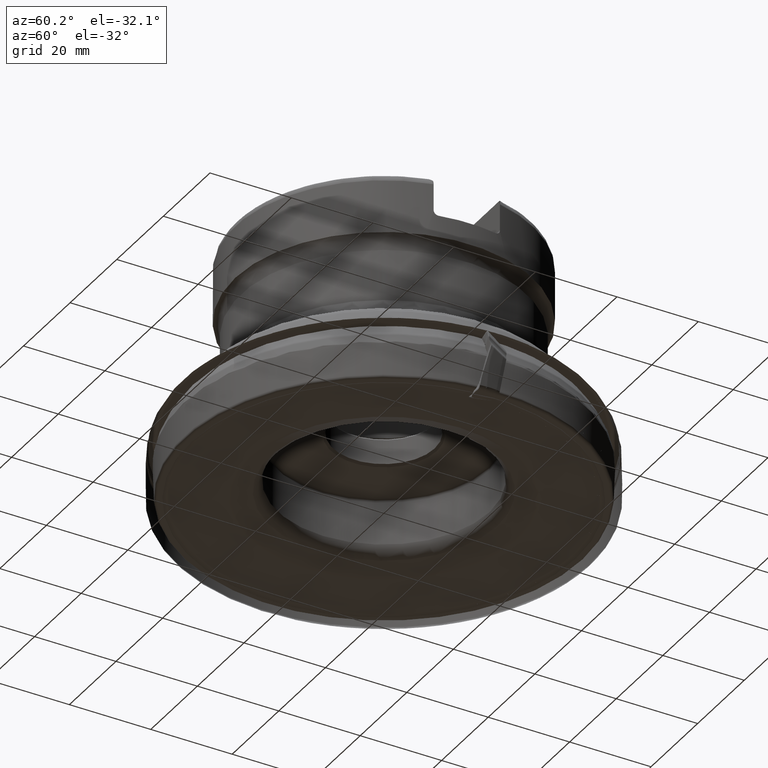
[diagram: clean part render]
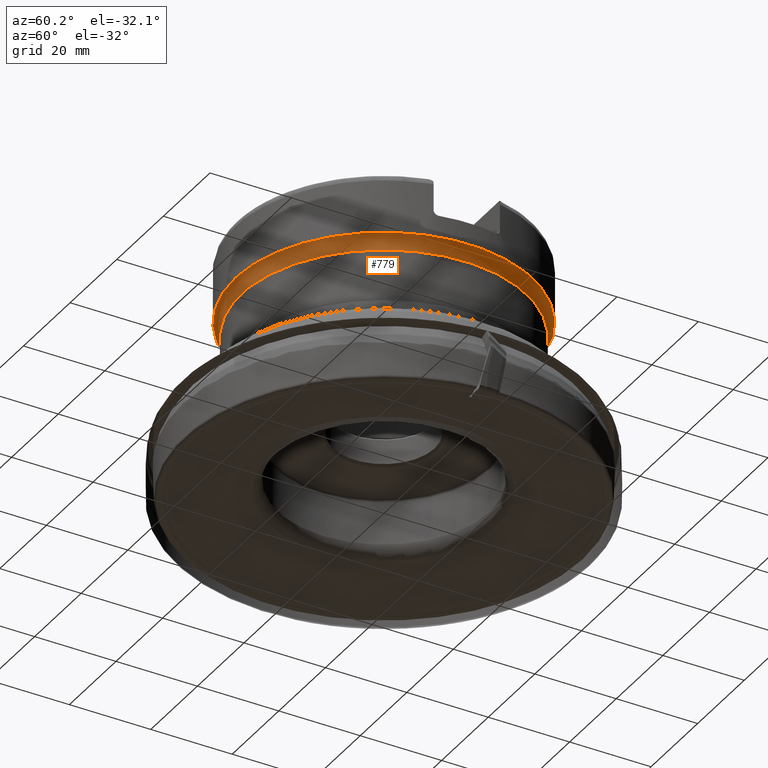
[diagram: same view with one face highlighted and labeled with its STEP entity id]
A machine part, auxiliary view. The second image highlights one B-rep face of the part: STEP entity #779.
In plain terms, the highlighted toroidal blend (fillet) surface has major radius 40 mm and minor (blend) radius 5 mm.
Its self-contained STEP definition (entity closure, byte-faithful):
#486=FACE_BOUND('',#1391,.T.);
#487=FACE_BOUND('',#1392,.T.);
#566=TOROIDAL_SURFACE('',#4691,40.,5.);
#594=CIRCLE('',#4628,35.);
#595=CIRCLE('',#4630,36.4644660940672);
#779=ADVANCED_FACE('',(#486,#487),#566,.F.);
#1391=EDGE_LOOP('',(#1947));
#1392=EDGE_LOOP('',(#1948));
#1947=ORIENTED_EDGE('',*,*,#3515,.F.);
#1948=ORIENTED_EDGE('',*,*,#3514,.F.);
#3106=VERTEX_POINT('',#5844);
#3107=VERTEX_POINT('',#5847);
#3514=EDGE_CURVE('',#3106,#3106,#594,.T.);
#3515=EDGE_CURVE('',#3107,#3107,#595,.T.);
#4628=AXIS2_PLACEMENT_3D('',#5843,#4911,#4912);
#4630=AXIS2_PLACEMENT_3D('',#5846,#4915,#4916);
#4691=AXIS2_PLACEMENT_3D('',#6020,#5045,#5046);
#4911=DIRECTION('',(0.,-1.17145536458252E-15,-1.));
#4912=DIRECTION('',(0.,1.,-1.18952466924124E-15));
#4915=DIRECTION('',(0.,1.17145536458252E-15,1.));
#4916=DIRECTION('',(0.,-1.,1.14175162515864E-15));
#5045=DIRECTION('',(0.,-1.17145536458252E-15,-1.));
#5046=DIRECTION('',(0.,1.,-1.2335811384724E-15));
#5843=CARTESIAN_POINT('',(0.,4.91471589271216E-14,41.9539321881345));
#5844=CARTESIAN_POINT('',(0.,35.0000000000001,41.9539321881345));
#5846=CARTESIAN_POINT('',(0.,5.32888790878899E-14,45.4894660940673));
#5847=CARTESIAN_POINT('',(0.,-36.4644660940672,45.4894660940673));
#6020=CARTESIAN_POINT('',(0.,4.91471589271216E-14,41.9539321881345));